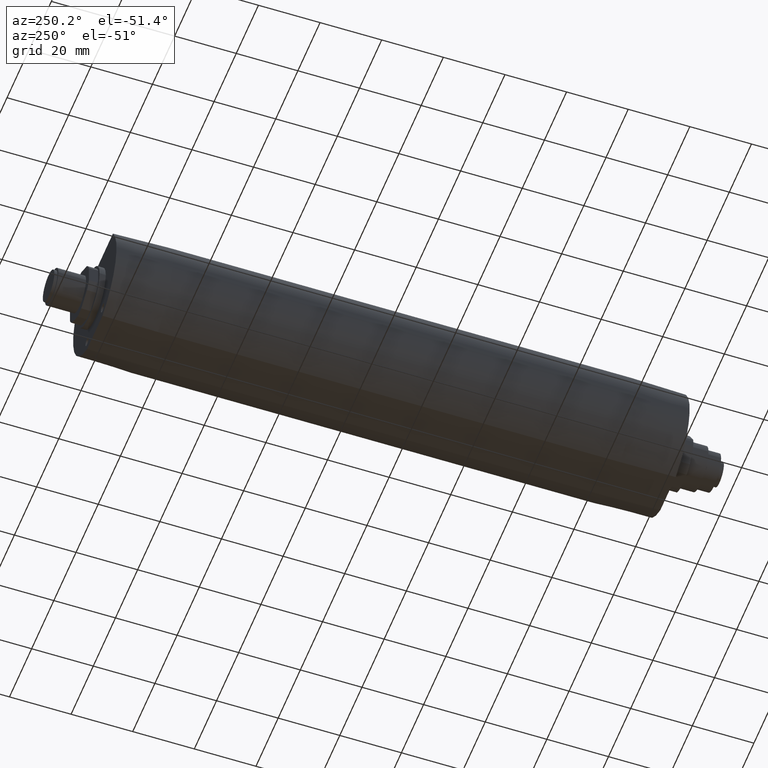
[diagram: clean part render]
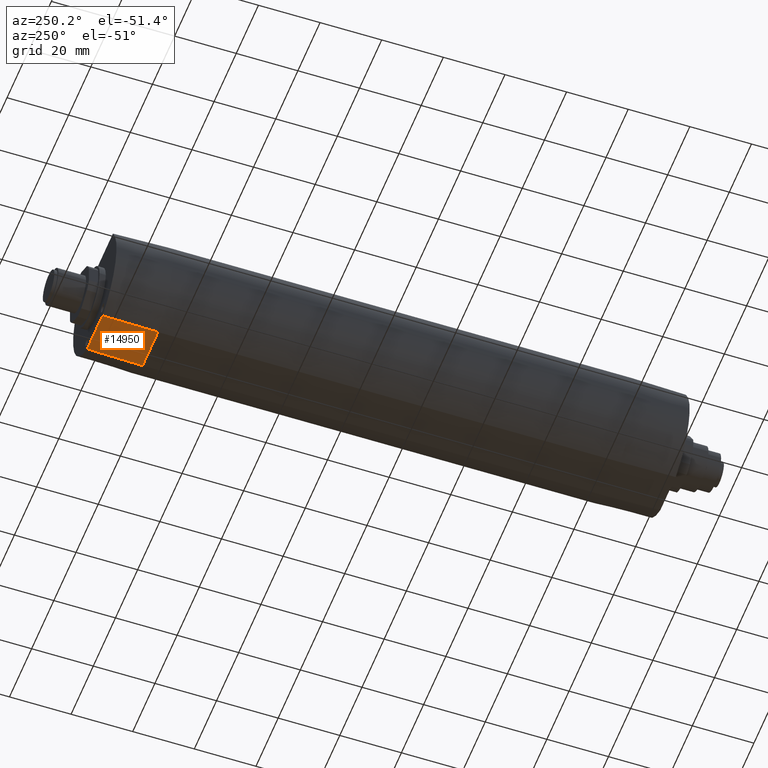
[diagram: same view with one face highlighted and labeled with its STEP entity id]
A machine part, auxiliary view. The second image highlights one B-rep face of the part: STEP entity #14950.
In plain terms, the highlighted planar face has unit normal (-0, 0.0244, -0.9997).
Its self-contained STEP definition (entity closure, byte-faithful):
#9640=CARTESIAN_POINT('',(-6.88024154290118,-18.3100894754653,-93.));
#9650=VERTEX_POINT('',#9640);
#9680=CARTESIAN_POINT('',(0.,-18.3100894754653,-93.));
#9690=DIRECTION('',(1.,0.,0.));
#9700=VECTOR('',#9690,1.);
#9710=LINE('',#9680,#9700);
#9720=CARTESIAN_POINT('',(6.88024154290118,-18.3100894754653,-93.));
#9730=VERTEX_POINT('',#9720);
#9740=EDGE_CURVE('',#9650,#9730,#9710,.T.);
#14630=CARTESIAN_POINT('',(7.30769450622052,-18.2990916199982,
-93.4500037788748));
#14640=DIRECTION('',(-0.,-0.999701489781183,-0.0244321781526532));
#14650=DIRECTION('',(0.,-0.0244321781526532,0.999701489781183));
#14660=AXIS2_PLACEMENT_3D('',#14630,#14640,#14650);
#14670=PLANE('',#14660);
#14680=CARTESIAN_POINT('',(6.95970545354248,-18.7499999999991,
-75.0000000000014));
#14690=CARTESIAN_POINT('',(6.93336869641444,-18.6033631422291,
-81.0000006652526));
#14700=CARTESIAN_POINT('',(6.90688247259911,-18.4567263004351,
-87.0000006768101));
#14710=CARTESIAN_POINT('',(6.88024154290638,-18.3100894754644,
-92.9999999999997));
#14720=B_SPLINE_CURVE_WITH_KNOTS('',3,(#14680,#14690,#14700,#14710),
.UNSPECIFIED.,.F.,.F.,(4,4),(0.,18.0055501421486),.UNSPECIFIED.);
#14730=CARTESIAN_POINT('',(6.95970545353752,-18.75,-74.9999999999999));
#14740=VERTEX_POINT('',#14730);
#14750=EDGE_CURVE('',#14740,#9730,#14720,.T.);
#14760=ORIENTED_EDGE('',*,*,#14750,.F.);
#14770=ORIENTED_EDGE('',*,*,#9740,.T.);
#14780=CARTESIAN_POINT('',(-6.88024154293413,-18.3100894754594,
-93.0000000000029));
#14790=CARTESIAN_POINT('',(-6.90688247262698,-18.4567263004301,
-87.0000006768117));
#14800=CARTESIAN_POINT('',(-6.93336869645061,-18.6033631422228,
-81.0000006652525));
#14810=CARTESIAN_POINT('',(-6.9597054535788,-18.7499999999928,
-74.9999999999996));
#14820=B_SPLINE_CURVE_WITH_KNOTS('',3,(#14780,#14790,#14800,#14810),
.UNSPECIFIED.,.F.,.F.,(4,4),(0.,18.0055501421536),.UNSPECIFIED.);
#14830=CARTESIAN_POINT('',(-6.95970545353753,-18.75,-75.));
#14840=VERTEX_POINT('',#14830);
#14850=EDGE_CURVE('',#9650,#14840,#14820,.T.);
#14860=ORIENTED_EDGE('',*,*,#14850,.F.);
#14870=CARTESIAN_POINT('',(0.,-18.75,-75.));
#14880=DIRECTION('',(1.,0.,0.));
#14890=VECTOR('',#14880,1.);
#14900=LINE('',#14870,#14890);
#14910=EDGE_CURVE('',#14840,#14740,#14900,.T.);
#14920=ORIENTED_EDGE('',*,*,#14910,.F.);
#14930=EDGE_LOOP('',(#14920,#14860,#14770,#14760));
#14940=FACE_OUTER_BOUND('',#14930,.T.);
#14950=ADVANCED_FACE('',(#14940),#14670,.T.);